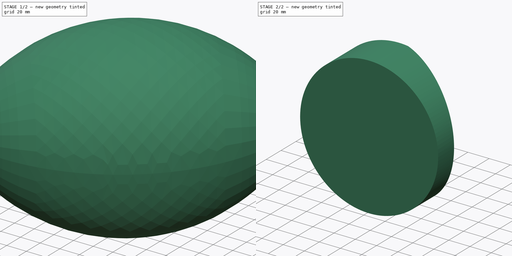
[diagram: build sequence overview — one tinted view per stage of 2, left to right]
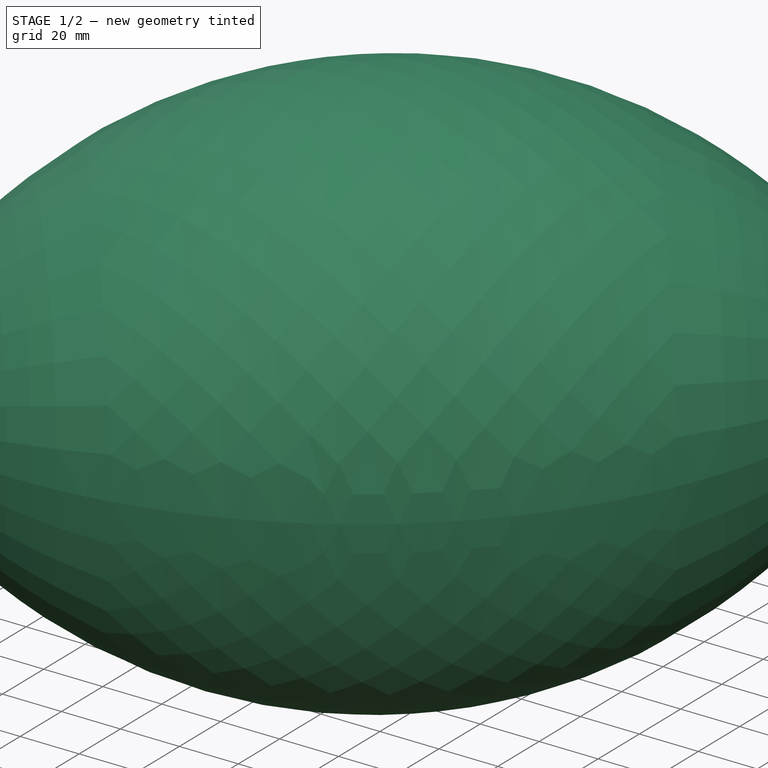
[diagram: stage 1 of 2 — iso view after this stage's code; geometry added in this stage tinted green]
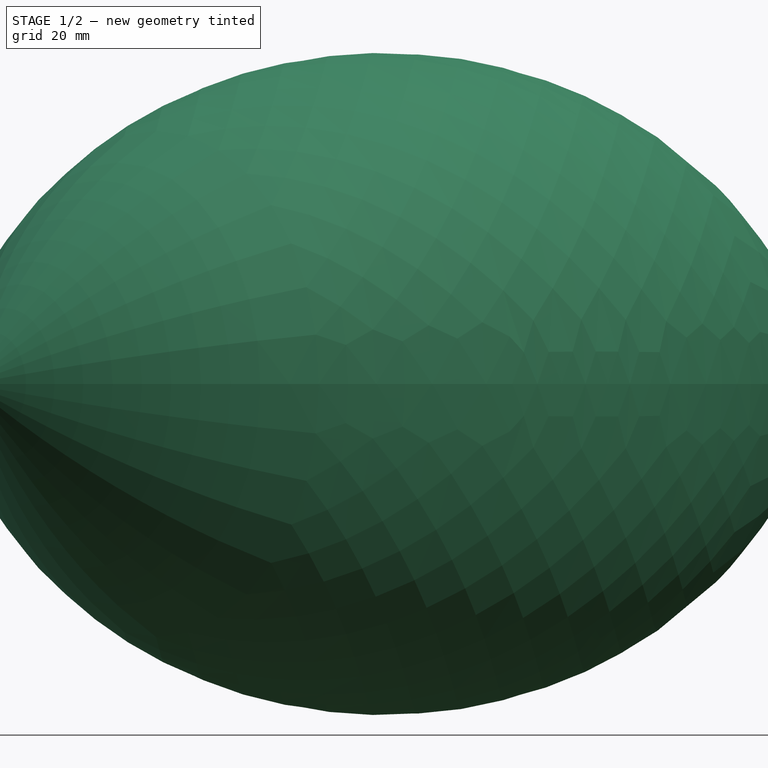
[diagram: stage 1 of 2 — front view after this stage's code; geometry added in this stage tinted green]
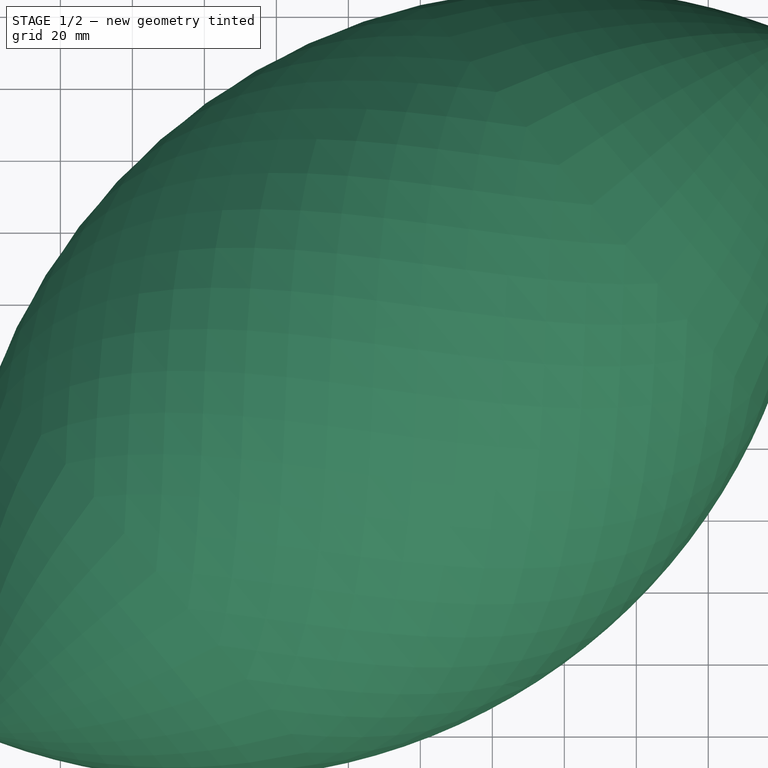
[diagram: stage 1 of 2 — top view after this stage's code; geometry added in this stage tinted green]
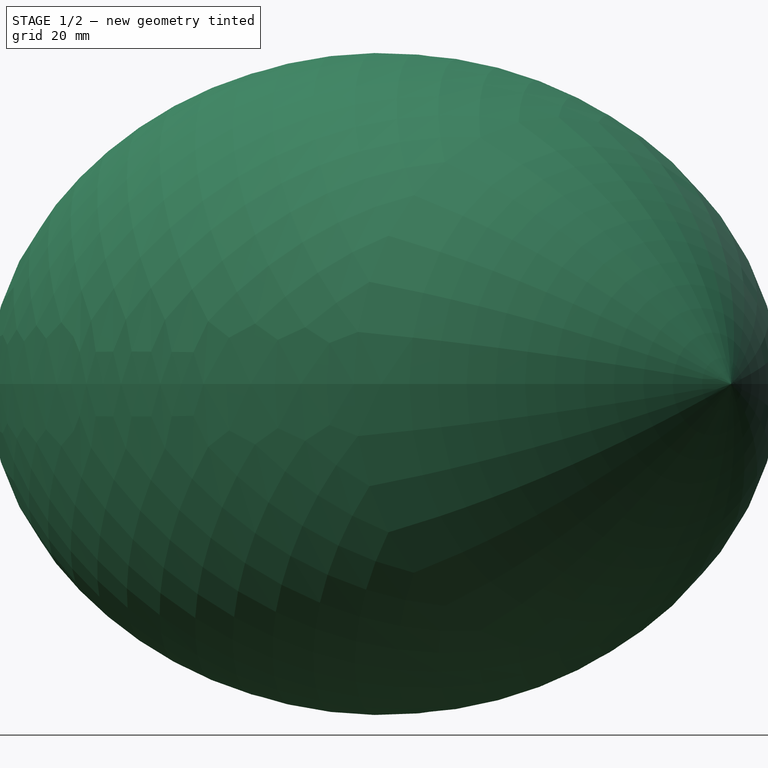
[diagram: stage 1 of 2 — right view after this stage's code; geometry added in this stage tinted green]
FCSTD DOCUMENT  (FreeCAD 0.18.3R)
Label: PelotaRugby
License: All rights reserved
LicenseURL: http://en.wikipedia.org/wiki/All_rights_reserved
objects: Sketcher::SketchObject×2, PartDesign::Body×2, Part::Revolution×1, PartDesign::Pad×1, Part::FeaturePython×1, Part::Cut×1
note: 9 computed .brp shape members not serialized (recipe doc carries the construction recipe); baked Part::Feature solids carry a one-line shape summary decoded from their .brp

FEATURE [Sketcher::SketchObject] Sketch
  MapMode = 5
  Support = -> [XY_Plane]
  sketch-geometry (4):
    g0: ArcOfCircle CenterX=-76.2826 CenterY=150 CenterZ=0 NormalX=0 NormalY=0 NormalZ=1 AngleXU=0 Radius=168.283 StartAngle=5.18285 EndAngle=7.38352
    g1: GeomPoint X=0 Y=150 Z=0
    g2: GeomPoint X=92 Y=150 Z=0
    g3: LineSegment StartX=1.42e-14 StartY=300 StartZ=0 EndX=-5.68e-14 EndY=-5.68e-14 EndZ=0
  constraints (10):
    c: Coincident(g0,g-1)
    c: PointOnObject(g0,g-2)
    c: DistanceY(g0,g0) = 300
    c: Horizontal(g1,g0)
    c: PointOnObject(g2,g0)
    c: Horizontal(g2,g0)
    c: DistanceX(g1,g2) = 92
    c: PointOnObject(g1,g-2)
    c: Coincident(g3,g0)
    c: Coincident(g3,g0)
FEATURE [PartDesign::Body] Body
  Group = -> [Sketch]
  Origin = -> Origin
FEATURE [Part::Revolution] Revolve
  Angle = 360
  Axis = (0,1,0)
  Base = (0,0,0)
  FaceMakerClass = Part::FaceMakerBullseye
  Placement = pos=(-5,20,0) rot=(0,0,1;-0.872665rad)
  Solid = true
  Source = -> Sketch
  Symmetric = false
FEATURE [PartDesign::Body] Body001
  Group = -> [Sketch001,Pad]
  Origin = -> Origin001
  Tip = -> Pad
FEATURE [Part::FeaturePython] Clone  label="Revolve001"  # Draft clone (typed FeaturePython)
  AttacherType = Attacher::AttachEngine3D
  Fuse = false
  Objects = -> [Revolve]
  Placement = pos=(-5,20,0) rot=(0,0,1;-0.872665rad)
  Scale = (1,1,1)
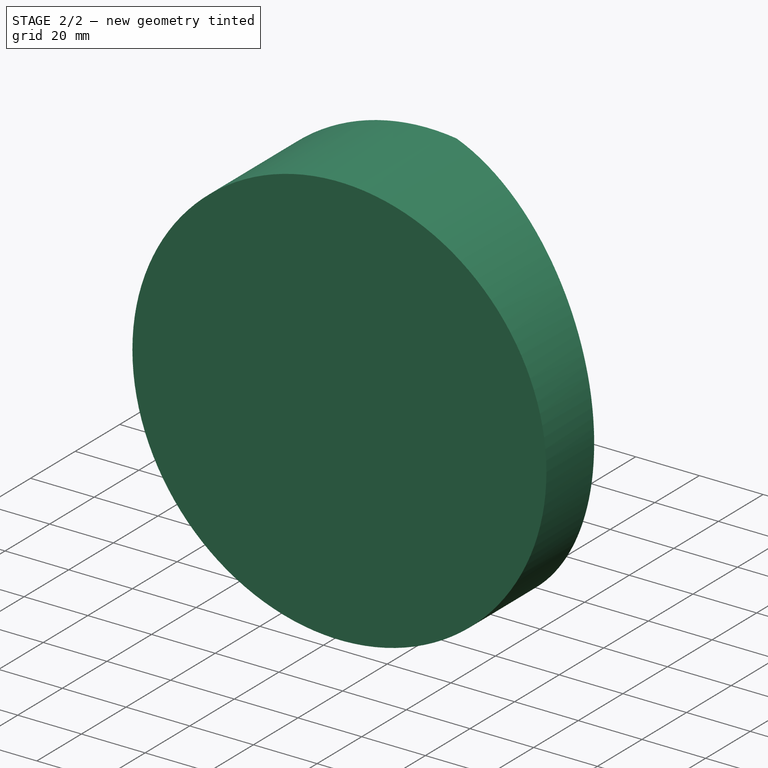
[diagram: stage 2 of 2 — iso view after this stage's code; geometry added in this stage tinted green]
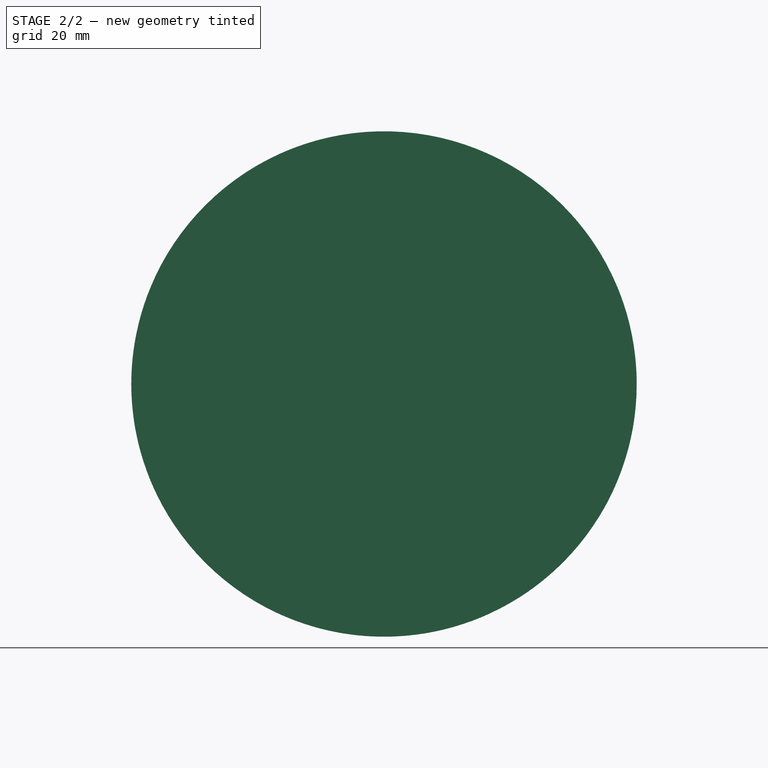
[diagram: stage 2 of 2 — front view after this stage's code; geometry added in this stage tinted green]
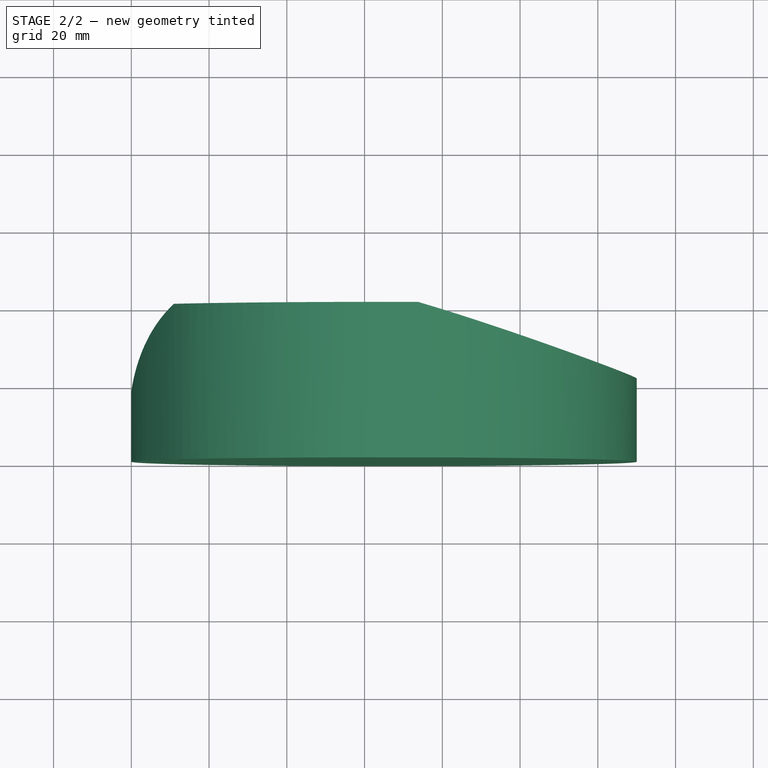
[diagram: stage 2 of 2 — top view after this stage's code; geometry added in this stage tinted green]
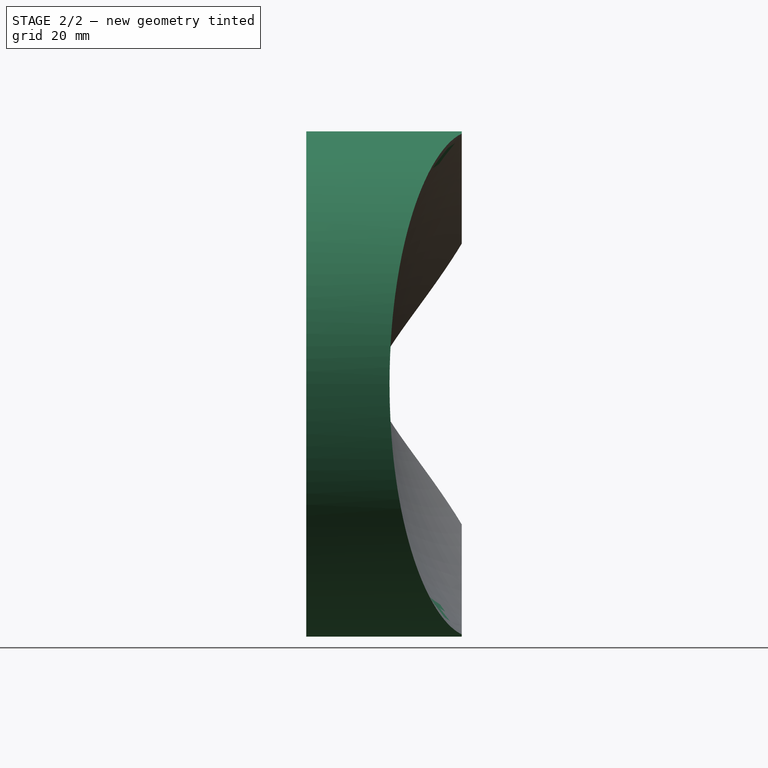
[diagram: stage 2 of 2 — right view after this stage's code; geometry added in this stage tinted green]
FEATURE [Sketcher::SketchObject] Sketch001
  MapMode = 5
  Placement = pos=(0,0,0) rot=(1,0,0;1.5708rad)
  Support = -> [XZ_Plane001]
  sketch-geometry (1):
    g0: Circle CenterX=65 CenterY=0 CenterZ=0 NormalX=0 NormalY=0 NormalZ=1 AngleXU=0 Radius=65
  constraints (3):
    c: PointOnObject(g0,g-1)
    c: PointOnObject(g-1,g0)
    c: Radius(g0) = 65
FEATURE [PartDesign::Pad] Pad
  Length = 40
  Length2 = 100
  Placement = pos=(0,0,0) rot=(1,0,0;1.5708rad)
  Profile = -> Sketch001
  Reversed = true
  Type = 0
FEATURE [Part::Cut] Cut
  Base = -> Body001
  Tool = -> Clone
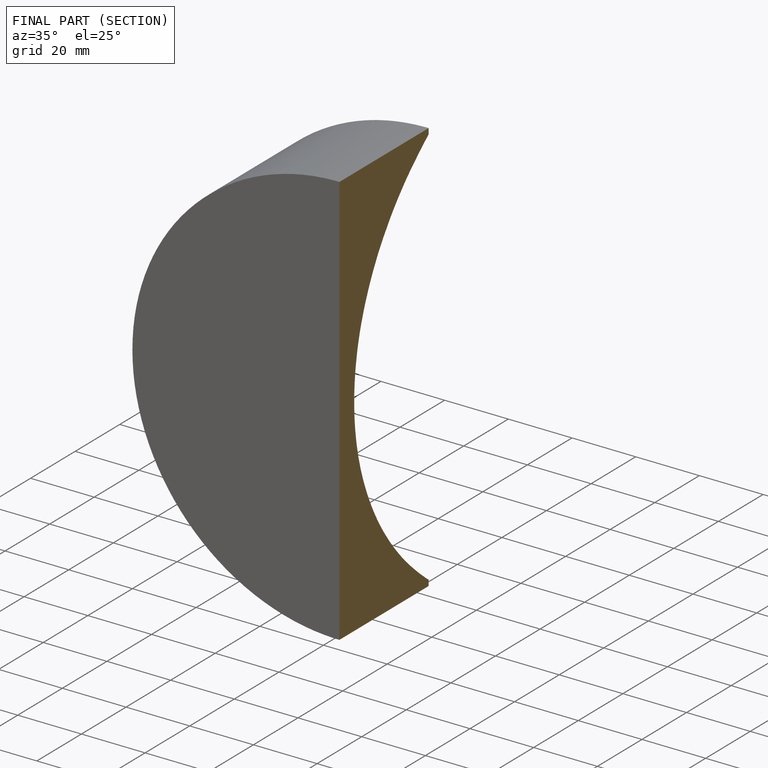
[diagram: finished part — half-section view (interior)]
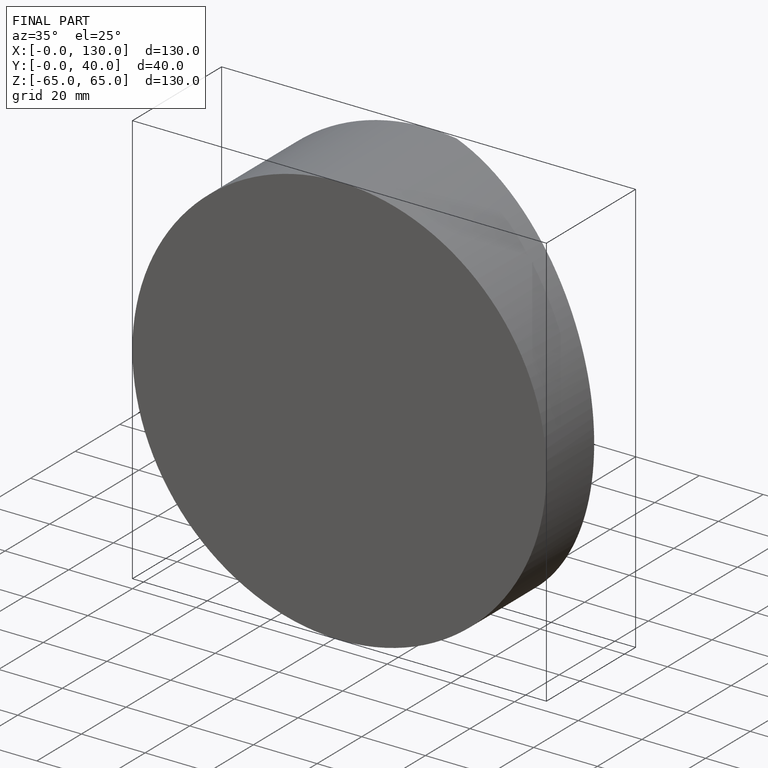
[diagram: finished part — iso view with bounding-box wireframe]
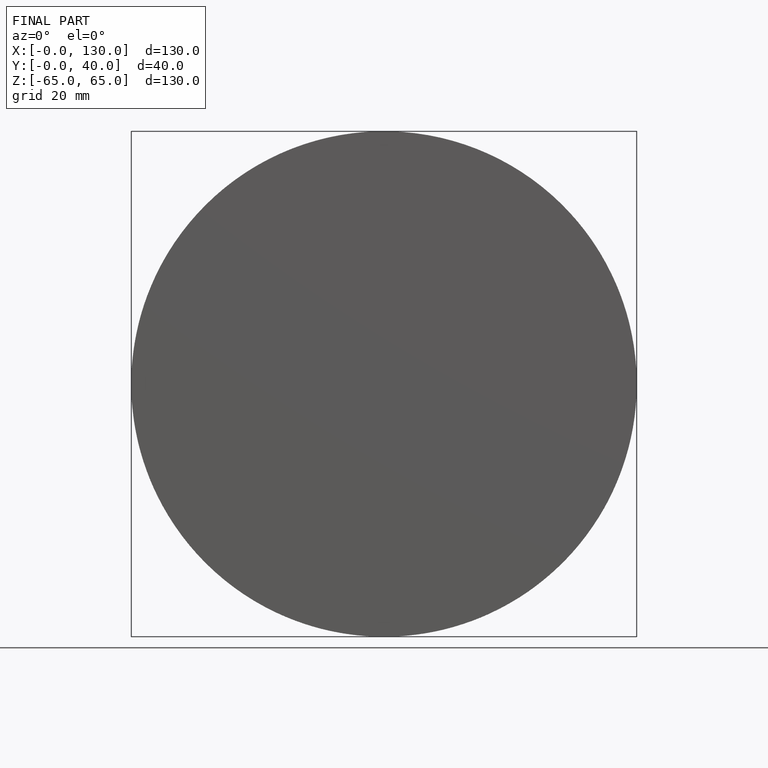
[diagram: finished part — front view with bounding-box wireframe]
